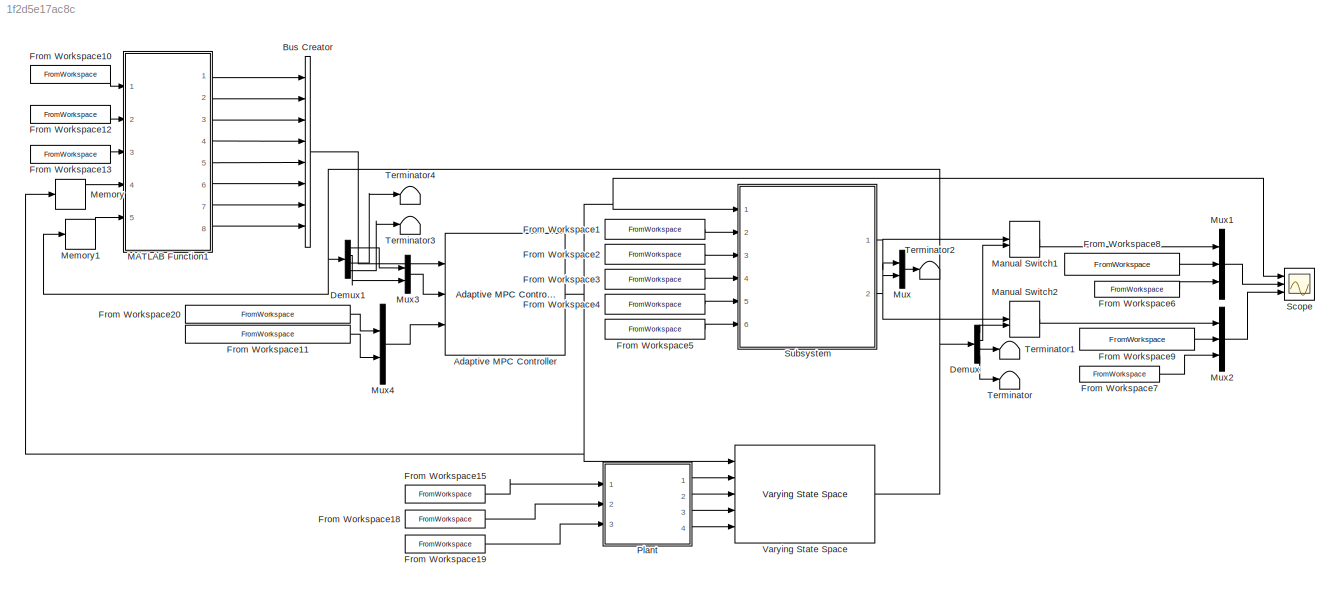
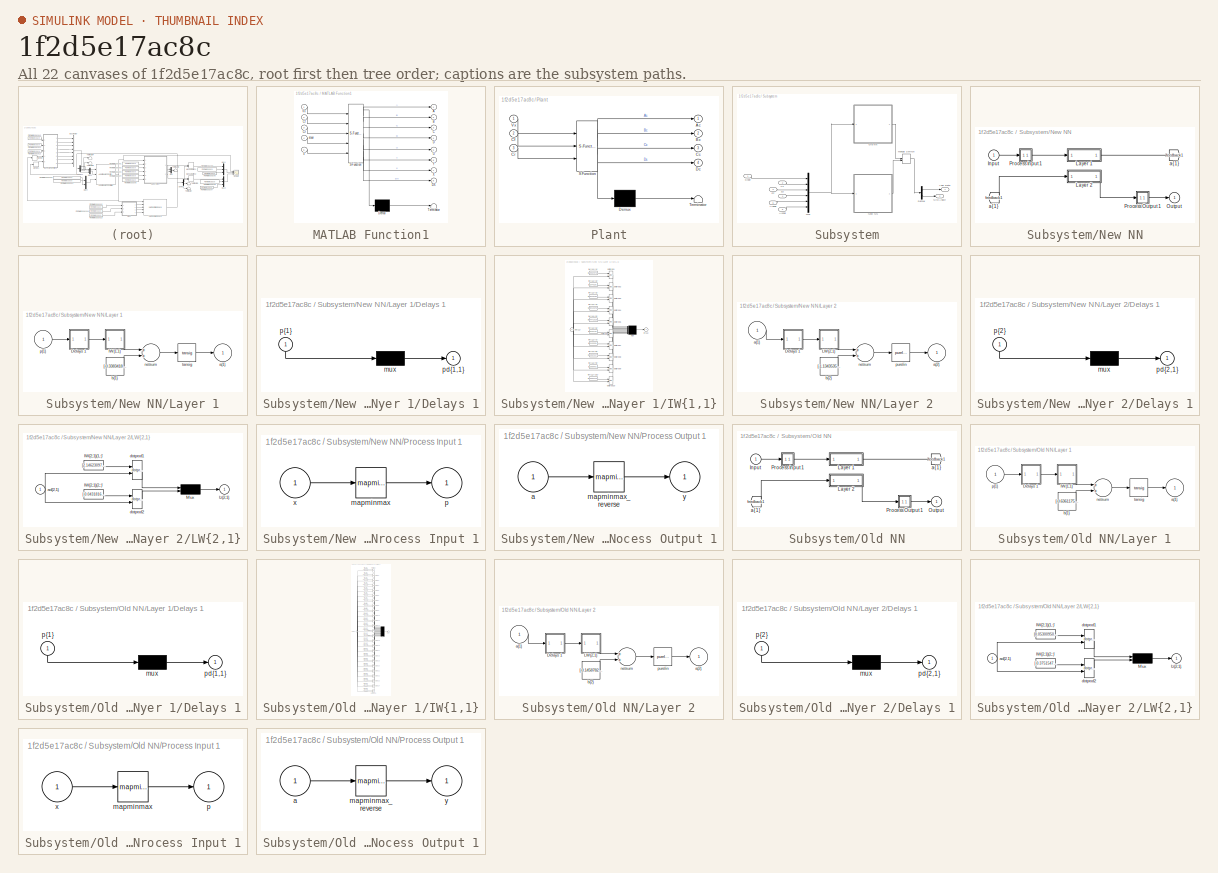
[diagram: thumbnail index - all 22 canvases of the model, root first then tree order]
MODEL slx_1f2d5e17ac8c
KIND model
CONFIG AbsTol = auto
CONFIG EnableMultiTasking = off
CONFIG FixedStep = 0.025
CONFIG MaxStep = auto
CONFIG MinStep = auto
CONFIG RelTol = 1e-3
CONFIG SampleTimeConstraint = Unconstrained
CONFIG Solver = FixedStepAuto
CONFIG SolverName = FixedStepAuto
CONFIG StartTime = 0.0
CONFIG StopTime = Time(end)
BLOCK [Reference] Adaptive MPC Controller  REF=mpclib/Adaptive MPC Controller  (lib defined in mdl_ae329e0e0455)
  Ports = [3, 1]
  SCDEnableBlockLinearizationSpecification = on
  SourceBlock = mpclib/Adaptive MPC Controller
  SourceProductBaseCode = MP
  SourceProductName = Model Predictive Control Toolbox
  SourceType = Adaptive MPC
BLOCK [BusCreator] Bus Creator
  DisplayOption = bar
  InheritFromInputs = on
  Inputs = 8
  Ports = [8, 1]
BLOCK [Demux] Demux
  DisplayOption = bar
  Ports = [1, 4]
BLOCK [Demux] Demux1
  DisplayOption = bar
  Ports = [1, 4]
BLOCK [FromWorkspace] From Workspace1
  Commented = on
  SampleTime = 0
  VariableName = [Time Vx]
  ZeroCross = on
BLOCK [FromWorkspace] From Workspace10
  SampleTime = 0
  VariableName = [Time Vx]
  ZeroCross = on
BLOCK [FromWorkspace] From Workspace11
  VariableName = [Time YawR_ref]
  ZeroCross = on
BLOCK [FromWorkspace] From Workspace12
  SampleTime = 0
  VariableName = [Time mean_Cf_fit]
  ZeroCross = on
BLOCK [FromWorkspace] From Workspace13
  SampleTime = 0
  VariableName = [Time mean_Cr_fit]
  ZeroCross = on
BLOCK [FromWorkspace] From Workspace15
  SampleTime = 0
  VariableName = [Time Vx]
  ZeroCross = on
BLOCK [FromWorkspace] From Workspace18
  SampleTime = 0
  VariableName = [Time mean_Cf_fit]
  ZeroCross = on
BLOCK [FromWorkspace] From Workspace19
  SampleTime = 0
  VariableName = [Time mean_Cr_fit]
  ZeroCross = on
BLOCK [FromWorkspace] From Workspace2
  Commented = on
  SampleTime = 0
  VariableName = [Time Fyf]
  ZeroCross = on
BLOCK [FromWorkspace] From Workspace20
  VariableName = [Time Beta_ref]
  ZeroCross = on
BLOCK [FromWorkspace] From Workspace3
  Commented = on
  SampleTime = 0
  VariableName = [Time Fyr]
  ZeroCross = on
BLOCK [FromWorkspace] From Workspace4
  Commented = on
  SampleTime = 0
  VariableName = [Time Alphaf]
  ZeroCross = on
BLOCK [FromWorkspace] From Workspace5
  Commented = on
  SampleTime = 0
  VariableName = [Time Alphar]
  ZeroCross = on
BLOCK [FromWorkspace] From Workspace6
  SampleTime = 0
  VariableName = [Time YawR]
  ZeroCross = on
BLOCK [FromWorkspace] From Workspace7
  SampleTime = 0
  VariableName = [Time Beta]
  ZeroCross = on
BLOCK [FromWorkspace] From Workspace8
  SampleTime = 0
  VariableName = [Time YawR_ref]
  ZeroCross = on
BLOCK [FromWorkspace] From Workspace9
  SampleTime = 0
  VariableName = [Time Beta_ref]
  ZeroCross = on
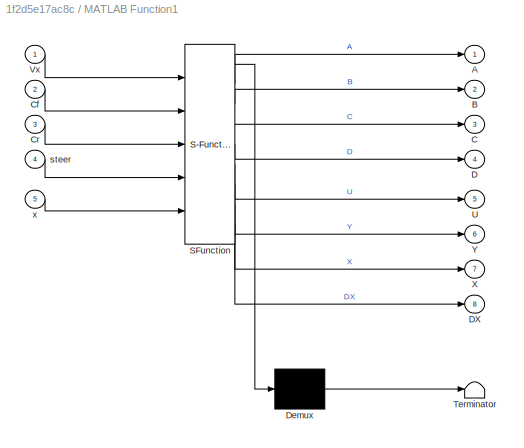
BLOCK [SubSystem] MATLAB Function1
  ErrorFcn = Stateflow.Translate.translate
  PermitHierarchicalResolution = ExplicitOnly
  Ports = [5, 8]
  RequestExecContextInheritance = off
  SFBlockType = MATLAB Function
  TreatAsAtomicUnit = on
BLOCK [Demux] MATLAB Function1/ Demux 
  Outputs = 1
  Ports = [1, 1]
BLOCK [S-Function] MATLAB Function1/ SFunction 
  EnableBusSupport = on
  FunctionName = sf_sfun
  PortCounts = [5 9]
  Ports = [5, 9]
  SFcnIsStateOwnerBlock = off
  SFunctionDeploymentMode = off
  Tag = Stateflow S-Function 2
BLOCK [Terminator] MATLAB Function1/ Terminator 
BLOCK [Outport] MATLAB Function1/A
  IconDisplay = Port number
  VectorParamsAs1DForOutWhenUnconnected = off
BLOCK [Outport] MATLAB Function1/B
  IconDisplay = Port number
  Port = 2
  VectorParamsAs1DForOutWhenUnconnected = off
BLOCK [Outport] MATLAB Function1/C
  IconDisplay = Port number
  Port = 3
  VectorParamsAs1DForOutWhenUnconnected = off
BLOCK [Inport] MATLAB Function1/Cf
  IconDisplay = Port number
  Port = 2
BLOCK [Inport] MATLAB Function1/Cr
  IconDisplay = Port number
  Port = 3
BLOCK [Outport] MATLAB Function1/D
  IconDisplay = Port number
  Port = 4
  VectorParamsAs1DForOutWhenUnconnected = off
BLOCK [Outport] MATLAB Function1/DX
  IconDisplay = Port number
  Port = 8
  VectorParamsAs1DForOutWhenUnconnected = off
BLOCK [Outport] MATLAB Function1/U
  IconDisplay = Port number
  Port = 5
  VectorParamsAs1DForOutWhenUnconnected = off
BLOCK [Inport] MATLAB Function1/Vx
  IconDisplay = Port number
BLOCK [Outport] MATLAB Function1/X
  IconDisplay = Port number
  Port = 7
  VectorParamsAs1DForOutWhenUnconnected = off
BLOCK [Outport] MATLAB Function1/Y
  IconDisplay = Port number
  Port = 6
  VectorParamsAs1DForOutWhenUnconnected = off
BLOCK [Inport] MATLAB Function1/steer
  IconDisplay = Port number
  Port = 4
BLOCK [Inport] MATLAB Function1/x
  IconDisplay = Port number
  Port = 5
BLOCK [ManualSwitch] Manual Switch1
  CurrentSetting = 0
BLOCK [ManualSwitch] Manual Switch2
  CurrentSetting = 0
BLOCK [Memory] Memory
BLOCK [Memory] Memory1
BLOCK [Mux] Mux
  DisplayOption = bar
  Inputs = 2
  Ports = [2, 1]
BLOCK [Mux] Mux1
  DisplayOption = bar
  Inputs = 3
  Ports = [3, 1]
BLOCK [Mux] Mux2
  DisplayOption = bar
  Inputs = 3
  Ports = [3, 1]
BLOCK [Mux] Mux3
  DisplayOption = bar
  Inputs = 2
  Ports = [2, 1]
BLOCK [Mux] Mux4
  DisplayOption = bar
  Inputs = 2
  Ports = [2, 1]
BLOCK [SubSystem] Plant
  ErrorFcn = Stateflow.Translate.translate
  PermitHierarchicalResolution = ExplicitOnly
  Ports = [3, 4]
  RequestExecContextInheritance = off
  SFBlockType = MATLAB Function
  TreatAsAtomicUnit = on
BLOCK [Demux] Plant/ Demux 
  Outputs = 1
  Ports = [1, 1]
BLOCK [S-Function] Plant/ SFunction 
  EnableBusSupport = on
  FunctionName = sf_sfun
  PortCounts = [3 5]
  Ports = [3, 5]
  SFcnIsStateOwnerBlock = off
  SFunctionDeploymentMode = off
  Tag = Stateflow S-Function 1
BLOCK [Terminator] Plant/ Terminator 
BLOCK [Outport] Plant/Ac
  IconDisplay = Port number
  VectorParamsAs1DForOutWhenUnconnected = off
BLOCK [Outport] Plant/Bc
  IconDisplay = Port number
  Port = 2
BLOCK [Outport] Plant/Cc
  IconDisplay = Port number
  Port = 3
BLOCK [Inport] Plant/Cf
  IconDisplay = Port number
  Port = 2
BLOCK [Inport] Plant/Cr
  IconDisplay = Port number
  Port = 3
BLOCK [Outport] Plant/Dc
  IconDisplay = Port number
  Port = 4
BLOCK [Inport] Plant/Vx
  IconDisplay = Port number
BLOCK [Scope] Scope
  Floating = off
  NumInputPorts = 3
  Ports = [3]
  ScopeSpecificationString = Simulink.scopes.TimeScopeBlockCfg('CurrentConfiguration', extmgr.ConfigurationSet(extmgr.Configuration('Core','General UI',true),extmgr.Configuration('Core','Source UI',true),extmgr.Configuration('Sources','WiredSimulink',true),extmgr.Configuration('Visuals','Time Domain',true,'SerializedDisplays',{struct('MinYLimReal','-95614.02004','MaxYLimReal','313429.44639','YLabelReal','','MinYLimMag','   0....<+2816ch>
BLOCK [SubSystem] Subsystem
  Commented = on
  Ports = [6, 2]
  RequestExecContextInheritance = off
BLOCK [Inport] Subsystem/Alphaf
  IconDisplay = Port number
  Port = 5
BLOCK [Inport] Subsystem/Alphar
  IconDisplay = Port number
  Port = 6
BLOCK [Demux] Subsystem/Demux
  DisplayOption = bar
  Outputs = 2
  Ports = [1, 2]
BLOCK [Inport] Subsystem/Fyf
  IconDisplay = Port number
  Port = 3
BLOCK [Inport] Subsystem/Fyr
  IconDisplay = Port number
  Port = 4
BLOCK [ManualSwitch] Subsystem/Manual Switch
  CurrentSetting = 0
BLOCK [Mux] Subsystem/Mux
  DisplayOption = bar
  Inputs = 6
  Ports = [6, 1]
BLOCK [SubSystem] Subsystem/New NN
  Ports = [1, 1]
  RequestExecContextInheritance = off
BLOCK [From] Subsystem/New NN/ a{1} 
  GotoTag = feedback1
BLOCK [Inport] Subsystem/New NN/Input
  IconDisplay = Port number
  PortDimensions = 6
BLOCK [SubSystem] Subsystem/New NN/Layer 1
  Ports = [1, 1]
  RequestExecContextInheritance = off
BLOCK [SubSystem] Subsystem/New NN/Layer 1/Delays 1
  Ports = [1, 1]
  RequestExecContextInheritance = off
BLOCK [Mux] Subsystem/New NN/Layer 1/Delays 1/mux
  Inputs = 1
  Ports = [1, 1]
BLOCK [Outport] Subsystem/New NN/Layer 1/Delays 1/pd{1,1}
  IconDisplay = Port number
BLOCK [Inport] Subsystem/New NN/Layer 1/Delays 1/p{1}
  IconDisplay = Port number
  PortDimensions = 6
BLOCK [SubSystem] Subsystem/New NN/Layer 1/IW{1,1}
  Ports = [1, 1]
  RequestExecContextInheritance = off
BLOCK [Constant] Subsystem/New NN/Layer 1/IW{1,1}/IW{1,1}(1,:)'
  Value = [2.1993497319179784454945547622628509998321533203125;0.379568540888895855633933251738199032843112945556640625;-0.131789280661840202402146360327606089413166046142578125;-0.06324432169368814082854868274807813577353954315185546875;3.60089216409093904047722389805130660533905029296875;-0.6187855340868100295637077579158358275890350341796875]
BLOCK [Constant] Subsystem/New NN/Layer 1/IW{1,1}/IW{1,1}(10,:)'
  Value = [2.43332215588629185987201708485372364521026611328125;-3.132439040678173025611386037780903279781341552734375;2.033708776632284109808779248851351439952850341796875;-3.08421602426274166219855032977648079395294189453125;0.02957925513544427953416260379526647739112377166748046875;-0.1131936030126976522325321639073081314563751220703125]
BLOCK [Constant] Subsystem/New NN/Layer 1/IW{1,1}/IW{1,1}(2,:)'
  Value = [-1.6344325076421437614726528408937156200408935546875;1.759078859992522669841719107353128492832183837890625;1.968106005883686560054002256947569549083709716796875;-0.69447741189528233718419869546778500080108642578125;-2.6545168405085615148664146545343101024627685546875;-3.423880588758005938387896094354800879955291748046875]
BLOCK [Constant] Subsystem/New NN/Layer 1/IW{1,1}/IW{1,1}(3,:)'
  Value = [1.232161923868251296454445764538832008838653564453125;-1.1439850537117397522024475620128214359283447265625;-0.429211557396726173241319202134036459028720855712890625;0.195054846055829955719929102997411973774433135986328125;2.208276693724478878522177183185704052448272705078125;0.5022912574136031427229909240850247442722320556640625]
BLOCK [Constant] Subsystem/New NN/Layer 1/IW{1,1}/IW{1,1}(4,:)'
  Value = [1.082126464380371633211552762077189981937408447265625;-0.37129730307754138518561148885055445134639739990234375;0.79810425840242393835666234735981561243534088134765625;-0.0984357337162460044321932173261302523314952850341796875;0.80503393013756341378694969534990377724170684814453125;-1.38724183551095858746293743024580180644989013671875]
BLOCK [Constant] Subsystem/New NN/Layer 1/IW{1,1}/IW{1,1}(5,:)'
  Value = [0.94471016274487151775929305586032569408416748046875;-1.004408437994171787721597866038791835308074951171875;0.160826847050564103458469844554201699793338775634765625;-0.181052319428635810627525870586396194994449615478515625;1.509136533573109506534137835842557251453399658203125;0.51576124977231263546428863264736719429492950439453125]
BLOCK [Constant] Subsystem/New NN/Layer 1/IW{1,1}/IW{1,1}(6,:)'
  Value = [-0.154374019902281778282571167437708936631679534912109375;0.001463591606028948576001535997193059301935136318206787109375;0.004912034318502560281682889353760401718318462371826171875;-0.006230904270530667095340238148537537199445068836212158203125;-0.2365694650119054276427021932249772362411022186279296875;-0.1170390996479229450688563929361407645046710968017578125]
BLOCK [Constant] Subsystem/New NN/Layer 1/IW{1,1}/IW{1,1}(7,:)'
  Value = [-0.61033398386761528175981084132217802107334136962890625;-0.81766935594813061616292770850122906267642974853515625;-0.491446446759277566496137978901970200240612030029296875;0.291093315685561460082197982046636752784252166748046875;-0.66489888966852628282566683992627076804637908935546875;1.0202585273489754857934030951582826673984527587890625]
BLOCK [Constant] Subsystem/New NN/Layer 1/IW{1,1}/IW{1,1}(8,:)'
  Value = [1.1235422728522943547346812920295633375644683837890625;0.2094335652842789496919095881821704097092151641845703125;0.29863779105524546064742708040284924209117889404296875;-0.330180768670108648610295176695217378437519073486328125;1.8764474979445922020460102430661208927631378173828125;0.69240312135195469789294975271332077682018280029296875]
BLOCK [Constant] Subsystem/New NN/Layer 1/IW{1,1}/IW{1,1}(9,:)'
  Value = [-1.2080663425527531362746458398760296404361724853515625;0.7805350925716776355756110206129960715770721435546875;-0.17607058969385047664246712884050793945789337158203125;0.161811371501998813027256574059720151126384735107421875;-1.8617793840638581226443193372688256204128265380859375;0.5112846911914312730829124120646156370639801025390625]
BLOCK [Mux] Subsystem/New NN/Layer 1/IW{1,1}/Mux
  Inputs = 10
  Ports = [10, 1]
BLOCK [Reference] Subsystem/New NN/Layer 1/IW{1,1}/dotprod1  REF=neural/Weight Functions/dotprod
  Ports = [2, 1]
  SourceBlock = neural/Weight Functions/dotprod
  SourceProductBaseCode = NN
  SourceProductName = Deep Learning Toolbox
  SourceType = DOTPROD
BLOCK [Reference] Subsystem/New NN/Layer 1/IW{1,1}/dotprod10  REF=neural/Weight Functions/dotprod
  Ports = [2, 1]
  SourceBlock = neural/Weight Functions/dotprod
  SourceProductBaseCode = NN
  SourceProductName = Deep Learning Toolbox
  SourceType = DOTPROD
BLOCK [Reference] Subsystem/New NN/Layer 1/IW{1,1}/dotprod2  REF=neural/Weight Functions/dotprod
  Ports = [2, 1]
  SourceBlock = neural/Weight Functions/dotprod
  SourceProductBaseCode = NN
  SourceProductName = Deep Learning Toolbox
  SourceType = DOTPROD
BLOCK [Reference] Subsystem/New NN/Layer 1/IW{1,1}/dotprod3  REF=neural/Weight Functions/dotprod
  Ports = [2, 1]
  SourceBlock = neural/Weight Functions/dotprod
  SourceProductBaseCode = NN
  SourceProductName = Deep Learning Toolbox
  SourceType = DOTPROD
BLOCK [Reference] Subsystem/New NN/Layer 1/IW{1,1}/dotprod4  REF=neural/Weight Functions/dotprod
  Ports = [2, 1]
  SourceBlock = neural/Weight Functions/dotprod
  SourceProductBaseCode = NN
  SourceProductName = Deep Learning Toolbox
  SourceType = DOTPROD
BLOCK [Reference] Subsystem/New NN/Layer 1/IW{1,1}/dotprod5  REF=neural/Weight Functions/dotprod
  Ports = [2, 1]
  SourceBlock = neural/Weight Functions/dotprod
  SourceProductBaseCode = NN
  SourceProductName = Deep Learning Toolbox
  SourceType = DOTPROD
BLOCK [Reference] Subsystem/New NN/Layer 1/IW{1,1}/dotprod6  REF=neural/Weight Functions/dotprod
  Ports = [2, 1]
  SourceBlock = neural/Weight Functions/dotprod
  SourceProductBaseCode = NN
  SourceProductName = Deep Learning Toolbox
  SourceType = DOTPROD
BLOCK [Reference] Subsystem/New NN/Layer 1/IW{1,1}/dotprod7  REF=neural/Weight Functions/dotprod
  Ports = [2, 1]
  SourceBlock = neural/Weight Functions/dotprod
  SourceProductBaseCode = NN
  SourceProductName = Deep Learning Toolbox
  SourceType = DOTPROD
BLOCK [Reference] Subsystem/New NN/Layer 1/IW{1,1}/dotprod8  REF=neural/Weight Functions/dotprod
  Ports = [2, 1]
  SourceBlock = neural/Weight Functions/dotprod
  SourceProductBaseCode = NN
  SourceProductName = Deep Learning Toolbox
  SourceType = DOTPROD
BLOCK [Reference] Subsystem/New NN/Layer 1/IW{1,1}/dotprod9  REF=neural/Weight Functions/dotprod
  Ports = [2, 1]
  SourceBlock = neural/Weight Functions/dotprod
  SourceProductBaseCode = NN
  SourceProductName = Deep Learning Toolbox
  SourceType = DOTPROD
BLOCK [Outport] Subsystem/New NN/Layer 1/IW{1,1}/iz{1,1}
  IconDisplay = Port number
BLOCK [Inport] Subsystem/New NN/Layer 1/IW{1,1}/pd{1,1}
  IconDisplay = Port number
  PortDimensions = 6
BLOCK [Outport] Subsystem/New NN/Layer 1/a{1}
  IconDisplay = Port number
  InitialOutput = [0;0;0;0;0;0;0;0;0;0]
BLOCK [Constant] Subsystem/New NN/Layer 1/b{1}
  Value = [-0.338341853589242014255233925723587162792682647705078125;-3.05254128721528505963078714557923376560211181640625;0.84508146760113433959560325092752464115619659423828125;-1.59851636609234848407368190237320959568023681640625;0.76261486728556493464026289075263775885105133056640625;-0.248418063072514794242806601687334477901458740234375;0.52128651476321141711167683752137236297130584716796875;-0.9062242...<+155ch>
BLOCK [Sum] Subsystem/New NN/Layer 1/netsum
  Inputs = 2
  Ports = [2, 1]
BLOCK [Inport] Subsystem/New NN/Layer 1/p{1}
  IconDisplay = Port number
  PortDimensions = 6
BLOCK [Reference] Subsystem/New NN/Layer 1/tansig  REF=neural/Transfer Functions/tansig
  Ports = [1, 1]
  SourceBlock = neural/Transfer Functions/tansig
  SourceProductBaseCode = NN
  SourceProductName = Deep Learning Toolbox
  SourceType = TANSIG
BLOCK [SubSystem] Subsystem/New NN/Layer 2
  Ports = [1, 1]
  RequestExecContextInheritance = off
BLOCK [SubSystem] Subsystem/New NN/Layer 2/Delays 1
  Ports = [1, 1]
  RequestExecContextInheritance = off
BLOCK [Mux] Subsystem/New NN/Layer 2/Delays 1/mux
  Inputs = 1
  Ports = [1, 1]
BLOCK [Outport] Subsystem/New NN/Layer 2/Delays 1/pd{2,1}
  IconDisplay = Port number
BLOCK [Inport] Subsystem/New NN/Layer 2/Delays 1/p{2}
  IconDisplay = Port number
  PortDimensions = 10
BLOCK [SubSystem] Subsystem/New NN/Layer 2/LW{2,1}
  Ports = [1, 1]
  RequestExecContextInheritance = off
BLOCK [Constant] Subsystem/New NN/Layer 2/LW{2,1}/IW{2,1}(1,:)'
  Value = [2.146230971869503179050298058427870273590087890625;-0.1392361092845713910204352714572451077401638031005859375;1.9479944901292167713791059213690459728240966796875;-0.18827430823241619872732144358451478183269500732421875;-4.05339651887875351832235537585802376270294189453125;0.1974937423858490193051551386815845035016536712646484375;-2.454769137452347482764025698998011648654937744140625;-2.6030723551...<+155ch>
BLOCK [Constant] Subsystem/New NN/Layer 2/LW{2,1}/IW{2,1}(2,:)'
  Value = [-0.04318166815156949944753961290189181454479694366455078125;0.00185683336830574940469473776971653933287598192691802978515625;0.00951966520429702034444829905623919330537319183349609375;-0.000693392587314719459172518423173414703342132270336151123046875;-0.006391938228917588664390603270248902845196425914764404296875;-4.16304280362685830141344922594726085662841796875;0.0014467394504769450803982611120...<+211ch>
BLOCK [Mux] Subsystem/New NN/Layer 2/LW{2,1}/Mux
  Inputs = 2
  Ports = [2, 1]
BLOCK [Inport] Subsystem/New NN/Layer 2/LW{2,1}/ad{2,1}
  IconDisplay = Port number
  PortDimensions = 10
BLOCK [Reference] Subsystem/New NN/Layer 2/LW{2,1}/dotprod1  REF=neural/Weight Functions/dotprod
  Ports = [2, 1]
  SourceBlock = neural/Weight Functions/dotprod
  SourceProductBaseCode = NN
  SourceProductName = Deep Learning Toolbox
  SourceType = DOTPROD
BLOCK [Reference] Subsystem/New NN/Layer 2/LW{2,1}/dotprod2  REF=neural/Weight Functions/dotprod
  Ports = [2, 1]
  SourceBlock = neural/Weight Functions/dotprod
  SourceProductBaseCode = NN
  SourceProductName = Deep Learning Toolbox
  SourceType = DOTPROD
BLOCK [Outport] Subsystem/New NN/Layer 2/LW{2,1}/lz{2,1}
  IconDisplay = Port number
BLOCK [Inport] Subsystem/New NN/Layer 2/a{1} 
  IconDisplay = Port number
  PortDimensions = 10
BLOCK [Outport] Subsystem/New NN/Layer 2/a{2}
  IconDisplay = Port number
  InitialOutput = [0;0]
BLOCK [Constant] Subsystem/New NN/Layer 2/b{2}
  Value = [-1.134353522080932652471574328956194221973419189453125;-0.77906731907597392972064653804409317672252655029296875]
BLOCK [Sum] Subsystem/New NN/Layer 2/netsum
  Inputs = 2
  Ports = [2, 1]
BLOCK [Reference] Subsystem/New NN/Layer 2/purelin  REF=neural/Transfer Functions/purelin
  Ports = [1, 1]
  SourceBlock = neural/Transfer Functions/purelin
  SourceProductBaseCode = NN
  SourceProductName = Deep Learning Toolbox
  SourceType = PURELIN
BLOCK [Outport] Subsystem/New NN/Output
  IconDisplay = Port number
  InitialOutput = [0;0]
BLOCK [SubSystem] Subsystem/New NN/Process Input 1
  Ports = [1, 1]
  RequestExecContextInheritance = off
BLOCK [Reference] Subsystem/New NN/Process Input 1/mapminmax  REF=neural/Processing Functions/mapminmax
  Ports = [1, 1]
  SourceBlock = neural/Processing Functions/mapminmax
  SourceProductBaseCode = NN
  SourceProductName = Deep Learning Toolbox
  SourceType = MAPMINMAX Preprocess
BLOCK [Outport] Subsystem/New NN/Process Input 1/p
  IconDisplay = Port number
  PortDimensions = 6
BLOCK [Inport] Subsystem/New NN/Process Input 1/x
  IconDisplay = Port number
  PortDimensions = 6
BLOCK [SubSystem] Subsystem/New NN/Process Output 1
  Ports = [1, 1]
  RequestExecContextInheritance = off
BLOCK [Inport] Subsystem/New NN/Process Output 1/a
  IconDisplay = Port number
  PortDimensions = 2
BLOCK [Reference] Subsystem/New NN/Process Output 1/mapminmax_reverse  REF=neural/Processing Functions/mapminmax_reverse
  Ports = [1, 1]
  SourceBlock = neural/Processing Functions/mapminmax_reverse
  SourceProductBaseCode = NN
  SourceProductName = Deep Learning Toolbox
  SourceType = MAPMINMAX Reverse Process
BLOCK [Outport] Subsystem/New NN/Process Output 1/y
  IconDisplay = Port number
  PortDimensions = 2
BLOCK [Goto] Subsystem/New NN/a{1}
  GotoTag = feedback1
BLOCK [SubSystem] Subsystem/Old NN
  Ports = [1, 1]
  RequestExecContextInheritance = off
BLOCK [From] Subsystem/Old NN/ a{1} 
  GotoTag = feedback1
BLOCK [Inport] Subsystem/Old NN/Input
  IconDisplay = Port number
  PortDimensions = 6
BLOCK [SubSystem] Subsystem/Old NN/Layer 1
  Ports = [1, 1]
  RequestExecContextInheritance = off
BLOCK [SubSystem] Subsystem/Old NN/Layer 1/Delays 1
  Ports = [1, 1]
  RequestExecContextInheritance = off
BLOCK [Mux] Subsystem/Old NN/Layer 1/Delays 1/mux
  Inputs = 1
  Ports = [1, 1]
BLOCK [Outport] Subsystem/Old NN/Layer 1/Delays 1/pd{1,1}
  IconDisplay = Port number
  VectorParamsAs1DForOutWhenUnconnected = off
BLOCK [Inport] Subsystem/Old NN/Layer 1/Delays 1/p{1}
  IconDisplay = Port number
  PortDimensions = 6
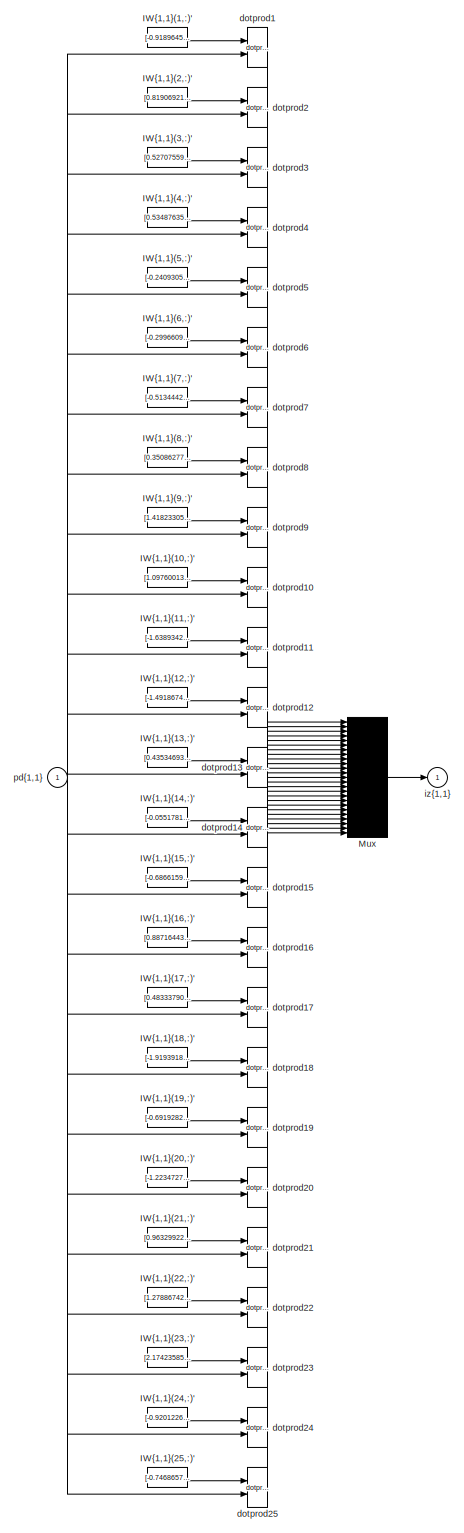
[diagram: Subsystem/Old NN/Layer 1/IW{1,1} - part 1/1, most of the canvas]
BLOCK [SubSystem] Subsystem/Old NN/Layer 1/IW{1,1}
  Ports = [1, 1]
  RequestExecContextInheritance = off
BLOCK [Constant] Subsystem/Old NN/Layer 1/IW{1,1}/IW{1,1}(1,:)'
  Value = [-0.91896454451869669100005921791307628154754638671875;2.807406064374065923772150199511088430881500244140625;-0.32650530029088009609239406927372328937053680419921875;-0.68212399974366133559300351407728157937526702880859375;0.55443567787012237868538022667053155601024627685546875;-0.328157572076140435779478821132215671241283416748046875]
BLOCK [Constant] Subsystem/Old NN/Layer 1/IW{1,1}/IW{1,1}(10,:)'
  Value = [1.097600133959441226494391230517067015171051025390625;-0.07827061444567622039425458524419809691607952117919921875;-0.38990454765808413295502532491809688508510589599609375;0.46998928551050112023546034833998419344425201416015625;0.4354289920842753236485123125021345913410186767578125;-0.59819487501920798333543416447355411946773529052734375]
BLOCK [Constant] Subsystem/Old NN/Layer 1/IW{1,1}/IW{1,1}(11,:)'
  Value = [-1.6389342699858098217902124815736897289752960205078125;-0.7309100789032456635396783894975669682025909423828125;0.0018010659112654837758771275701974445837549865245819091796875;0.83129641458116487751084378032828681170940399169921875;-0.93893409236719238553092736765393055975437164306640625;0.084419703238978460735353337440756149590015411376953125]
BLOCK [Constant] Subsystem/Old NN/Layer 1/IW{1,1}/IW{1,1}(12,:)'
  Value = [-1.4918674293447633516507266904227435588836669921875;0.52049473620865904788246325551881454885005950927734375;-0.272842583889991330270419211956323124468326568603515625;-0.5921939615822207070294780351105146110057830810546875;-1.6000734146301442972770701089757494628429412841796875;-0.7163345210483613723084772573201917111873626708984375]
BLOCK [Constant] Subsystem/Old NN/Layer 1/IW{1,1}/IW{1,1}(13,:)'
  Value = [0.4353469377680905250116438764962367713451385498046875;-0.84085297783017975969954704851261340081691741943359375;-0.3262431999570882812378158632782287895679473876953125;-0.03343748267568195930987684505453216843307018280029296875;0.7569219535729778680632762188906781375408172607421875;-0.336770011411867520312313217800692655146121978759765625]
BLOCK [Constant] Subsystem/Old NN/Layer 1/IW{1,1}/IW{1,1}(14,:)'
  Value = [-0.055178122760997337648003480126135400496423244476318359375;-1.4381626335296340268854464738979004323482513427734375;0.1875648565884424356919879528504679910838603973388671875;-0.53640519002087516664545319144963286817073822021484375;-1.0068525371299339443709186525666154921054840087890625;0.160847593541183275789308027015067636966705322265625]
BLOCK [Constant] Subsystem/Old NN/Layer 1/IW{1,1}/IW{1,1}(15,:)'
  Value = [-0.686615934023023566368237879942171275615692138671875;0.426894044409089457037254078386467881500720977783203125;-0.60810228251544184985277752275578677654266357421875;0.1522748062778661870542151746121817268431186676025390625;-2.1099858845401460172297447570599615573883056640625;0.1713882654697056195924886878856341354548931121826171875]
BLOCK [Constant] Subsystem/Old NN/Layer 1/IW{1,1}/IW{1,1}(16,:)'
  Value = [0.88716443941147471452524086998892016708850860595703125;0.40313159970102241391742836640332825481891632080078125;-0.015657524645655340744809791431180201470851898193359375;-0.478263451738349443242981351431808434426784515380859375;0.3859891211729997717583273697528056800365447998046875;0.6315189817233604063773100278922356665134429931640625]
BLOCK [Constant] Subsystem/Old NN/Layer 1/IW{1,1}/IW{1,1}(17,:)'
  Value = [0.48333790300379242399486656722729094326496124267578125;0.0251588125096972210770207567520628799684345722198486328125;-0.67153040371300332100901187004637904465198516845703125;0.46244925298389250034603037420311011373996734619140625;-0.126361383991284270678079337812960147857666015625;-0.9536652713805617853637386360787786543369293212890625]
BLOCK [Constant] Subsystem/Old NN/Layer 1/IW{1,1}/IW{1,1}(18,:)'
  Value = [-1.919391890863494598562510873307473957538604736328125;2.760761832853932506992578055360354483127593994140625;0.166517652488541612054717688806704245507717132568359375;0.554430338119628718374087839038111269474029541015625;0.9634316882260487435729601202183403074741363525390625;-1.5238850536123587087189434896572493016719818115234375]
BLOCK [Constant] Subsystem/Old NN/Layer 1/IW{1,1}/IW{1,1}(19,:)'
  Value = [-0.69192820872236715512570981445605866611003875732421875;-1.0115896887588913255484612818690948188304901123046875;0.2082050329143752265270705947841634042561054229736328125;1.4276170938064451920723740840912796556949615478515625;0.60289644057316038594507290326873771846294403076171875;0.491245567452074427539088219418772496283054351806640625]
BLOCK [Constant] Subsystem/Old NN/Layer 1/IW{1,1}/IW{1,1}(2,:)'
  Value = [0.819069212007324409796638065017759799957275390625;1.4205841344905445478019601068808697164058685302734375;-0.2087539526108411480631588119649677537381649017333984375;0.5615055630163883204630792533862404525279998779296875;0.7621159660466625407337915021344088017940521240234375;-0.25482421381122211112568720636772923171520233154296875]
BLOCK [Constant] Subsystem/Old NN/Layer 1/IW{1,1}/IW{1,1}(20,:)'
  Value = [-1.223472713315403748168819220154546201229095458984375;1.02781452349469848428498153225518763065338134765625;-0.5016143513805861875454183973488397896289825439453125;-0.76512208370276379998387028535944409668445587158203125;-0.343872743653884926917640996180125512182712554931640625;-0.8302771328935032446594277644180692732334136962890625]
BLOCK [Constant] Subsystem/Old NN/Layer 1/IW{1,1}/IW{1,1}(21,:)'
  Value = [0.96329922717340188409451684492523781955242156982421875;-0.6551169661280218381449458320275880396366119384765625;-0.50582440032005393515390778702567331492900848388671875;0.046064824593341609226815336342042428441345691680908203125;1.406097969527585700433292004163376986980438232421875;-1.30481552967731406766915824846364557743072509765625]
BLOCK [Constant] Subsystem/Old NN/Layer 1/IW{1,1}/IW{1,1}(22,:)'
  Value = [1.2788674220914140189364616162492893636226654052734375;-0.499205108866402846867771359029575251042842864990234375;0.12542267272189933091652846997021697461605072021484375;-0.54779174719712830921025670249946415424346923828125;0.97010399881503683872097099083475768566131591796875;0.613862465609015917067381451488472521305084228515625]
BLOCK [Constant] Subsystem/Old NN/Layer 1/IW{1,1}/IW{1,1}(23,:)'
  Value = [2.1742358562138814903619277174584567546844482421875;0.7779663865511003972841308495844714343547821044921875;0.11376764528600201431540739349657087586820125579833984375;-0.321381834602109339726894177147187292575836181640625;0.31338586648281763213930162237375043332576751708984375;0.8184780163425291465983946181950159370899200439453125]
BLOCK [Constant] Subsystem/Old NN/Layer 1/IW{1,1}/IW{1,1}(24,:)'
  Value = [-0.920122625825073203742476835031993687152862548828125;1.7985903786357282374552823966951109468936920166015625;-0.449335796921472019338494874318712390959262847900390625;0.37211945524182443723049118489143438637256622314453125;-0.268179811625878616876406113078701309859752655029296875;-0.99187628535014782382717157815932296216487884521484375]
BLOCK [Constant] Subsystem/Old NN/Layer 1/IW{1,1}/IW{1,1}(25,:)'
  Value = [-0.7468657722437128665404770799796096980571746826171875;0.9514243031970905928318416044930927455425262451171875;-0.19912347847005718026736076353699900209903717041015625;0.42273079982580286095839028348564170300960540771484375;-0.454298439023558542348979472080827690660953521728515625;0.1158651407635991337219394381463644094765186309814453125]
BLOCK [Constant] Subsystem/Old NN/Layer 1/IW{1,1}/IW{1,1}(3,:)'
  Value = [0.52707559518076940729969237509067170321941375732421875;-1.35807461272378393601911739096976816654205322265625;0.6803855694700444711742193248937837779521942138671875;0.5457109471856937954470367913017980754375457763671875;-0.87266721000643909800231767803779803216457366943359375;0.354606028999767397547060454598977230489253997802734375]
BLOCK [Constant] Subsystem/Old NN/Layer 1/IW{1,1}/IW{1,1}(4,:)'
  Value = [0.5348763590344882690175154493772424757480621337890625;-2.94460120006832237748994884896092116832733154296875;0.25881394439468252688385518922586925327777862548828125;-0.988869737367270573713540215976536273956298828125;-1.34291304141692702245336477062664926052093505859375;0.8873294643855762497963723944849334657192230224609375]
BLOCK [Constant] Subsystem/Old NN/Layer 1/IW{1,1}/IW{1,1}(5,:)'
  Value = [-0.2409305267371661951614214558503590524196624755859375;1.3517602448933578873635497075156308710575103759765625;0.671714233157041373800666406168602406978607177734375;0.1699364545961201400370299552378128282725811004638671875;1.4733154643789483362326109272544272243976593017578125;0.44108263254802881903060551849193871021270751953125]
BLOCK [Constant] Subsystem/Old NN/Layer 1/IW{1,1}/IW{1,1}(6,:)'
  Value = [-0.29966099248417654710152646657661534845829010009765625;2.155080979873955637771132387570105493068695068359375;-0.5456468341177356240478957261075265705585479736328125;1.29078953244448957349277407047338783740997314453125;0.66091237151677351135958815575577318668365478515625;0.7268233797996483946946000287425704300403594970703125]
BLOCK [Constant] Subsystem/Old NN/Layer 1/IW{1,1}/IW{1,1}(7,:)'
  Value = [-0.5134442442948008444858487564488314092159271240234375;-0.046290477876960854641819054222651175223290920257568359375;-0.2734432707170408871633071612450294196605682373046875;-0.2045817861686594352210732949970406480133533477783203125;0.6178838573936122902097167752799578011035919189453125;0.8082262562382600545873856390244327485561370849609375]
BLOCK [Constant] Subsystem/Old NN/Layer 1/IW{1,1}/IW{1,1}(8,:)'
  Value = [0.350862775841264851184320150423445738852024078369140625;0.68910283718495712879104075909708626568317413330078125;0.401025938922157598742757045329199172556400299072265625;0.0211565590218434108893408307494610198773443698883056640625;-1.279037208798537772480585772427730262279510498046875;1.401791982737751851573193562217056751251220703125]
BLOCK [Constant] Subsystem/Old NN/Layer 1/IW{1,1}/IW{1,1}(9,:)'
  Value = [1.418233051281720946690256823785603046417236328125;-1.182436857788876860553273218101821839809417724609375;-0.96678645577470512240125799507950432598590850830078125;-0.1518551314846387223500556729050003923475742340087890625;-0.86831624417003328009201368331559933722019195556640625;-0.64704123302700822240041134136845357716083526611328125]
BLOCK [Mux] Subsystem/Old NN/Layer 1/IW{1,1}/Mux
  Inputs = 25
  Ports = [25, 1]
BLOCK [Reference] Subsystem/Old NN/Layer 1/IW{1,1}/dotprod1  REF=neural/Weight Functions/dotprod
  Ports = [2, 1]
  SourceBlock = neural/Weight Functions/dotprod
  SourceProductBaseCode = Missing
  SourceProductName = MATLAB Runtime - Deep Learning Toolbox
  SourceType = DOTPROD
BLOCK [Reference] Subsystem/Old NN/Layer 1/IW{1,1}/dotprod10  REF=neural/Weight Functions/dotprod
  Ports = [2, 1]
  SourceBlock = neural/Weight Functions/dotprod
  SourceProductBaseCode = Missing
  SourceProductName = MATLAB Runtime - Deep Learning Toolbox
  SourceType = DOTPROD
BLOCK [Reference] Subsystem/Old NN/Layer 1/IW{1,1}/dotprod11  REF=neural/Weight Functions/dotprod
  Ports = [2, 1]
  SourceBlock = neural/Weight Functions/dotprod
  SourceProductBaseCode = Missing
  SourceProductName = MATLAB Runtime - Deep Learning Toolbox
  SourceType = DOTPROD
BLOCK [Reference] Subsystem/Old NN/Layer 1/IW{1,1}/dotprod12  REF=neural/Weight Functions/dotprod
  Ports = [2, 1]
  SourceBlock = neural/Weight Functions/dotprod
  SourceProductBaseCode = Missing
  SourceProductName = MATLAB Runtime - Deep Learning Toolbox
  SourceType = DOTPROD
BLOCK [Reference] Subsystem/Old NN/Layer 1/IW{1,1}/dotprod13  REF=neural/Weight Functions/dotprod
  Ports = [2, 1]
  SourceBlock = neural/Weight Functions/dotprod
  SourceProductBaseCode = Missing
  SourceProductName = MATLAB Runtime - Deep Learning Toolbox
  SourceType = DOTPROD
BLOCK [Reference] Subsystem/Old NN/Layer 1/IW{1,1}/dotprod14  REF=neural/Weight Functions/dotprod
  Ports = [2, 1]
  SourceBlock = neural/Weight Functions/dotprod
  SourceProductBaseCode = Missing
  SourceProductName = MATLAB Runtime - Deep Learning Toolbox
  SourceType = DOTPROD
BLOCK [Reference] Subsystem/Old NN/Layer 1/IW{1,1}/dotprod15  REF=neural/Weight Functions/dotprod
  Ports = [2, 1]
  SourceBlock = neural/Weight Functions/dotprod
  SourceProductBaseCode = Missing
  SourceProductName = MATLAB Runtime - Deep Learning Toolbox
  SourceType = DOTPROD
BLOCK [Reference] Subsystem/Old NN/Layer 1/IW{1,1}/dotprod16  REF=neural/Weight Functions/dotprod
  Ports = [2, 1]
  SourceBlock = neural/Weight Functions/dotprod
  SourceProductBaseCode = Missing
  SourceProductName = MATLAB Runtime - Deep Learning Toolbox
  SourceType = DOTPROD
BLOCK [Reference] Subsystem/Old NN/Layer 1/IW{1,1}/dotprod17  REF=neural/Weight Functions/dotprod
  Ports = [2, 1]
  SourceBlock = neural/Weight Functions/dotprod
  SourceProductBaseCode = Missing
  SourceProductName = MATLAB Runtime - Deep Learning Toolbox
  SourceType = DOTPROD
BLOCK [Reference] Subsystem/Old NN/Layer 1/IW{1,1}/dotprod18  REF=neural/Weight Functions/dotprod
  Ports = [2, 1]
  SourceBlock = neural/Weight Functions/dotprod
  SourceProductBaseCode = Missing
  SourceProductName = MATLAB Runtime - Deep Learning Toolbox
  SourceType = DOTPROD
BLOCK [Reference] Subsystem/Old NN/Layer 1/IW{1,1}/dotprod19  REF=neural/Weight Functions/dotprod
  Ports = [2, 1]
  SourceBlock = neural/Weight Functions/dotprod
  SourceProductBaseCode = Missing
  SourceProductName = MATLAB Runtime - Deep Learning Toolbox
  SourceType = DOTPROD
BLOCK [Reference] Subsystem/Old NN/Layer 1/IW{1,1}/dotprod2  REF=neural/Weight Functions/dotprod
  Ports = [2, 1]
  SourceBlock = neural/Weight Functions/dotprod
  SourceProductBaseCode = Missing
  SourceProductName = MATLAB Runtime - Deep Learning Toolbox
  SourceType = DOTPROD
BLOCK [Reference] Subsystem/Old NN/Layer 1/IW{1,1}/dotprod20  REF=neural/Weight Functions/dotprod
  Ports = [2, 1]
  SourceBlock = neural/Weight Functions/dotprod
  SourceProductBaseCode = Missing
  SourceProductName = MATLAB Runtime - Deep Learning Toolbox
  SourceType = DOTPROD
BLOCK [Reference] Subsystem/Old NN/Layer 1/IW{1,1}/dotprod21  REF=neural/Weight Functions/dotprod
  Ports = [2, 1]
  SourceBlock = neural/Weight Functions/dotprod
  SourceProductBaseCode = Missing
  SourceProductName = MATLAB Runtime - Deep Learning Toolbox
  SourceType = DOTPROD
BLOCK [Reference] Subsystem/Old NN/Layer 1/IW{1,1}/dotprod22  REF=neural/Weight Functions/dotprod
  Ports = [2, 1]
  SourceBlock = neural/Weight Functions/dotprod
  SourceProductBaseCode = Missing
  SourceProductName = MATLAB Runtime - Deep Learning Toolbox
  SourceType = DOTPROD
BLOCK [Reference] Subsystem/Old NN/Layer 1/IW{1,1}/dotprod23  REF=neural/Weight Functions/dotprod
  Ports = [2, 1]
  SourceBlock = neural/Weight Functions/dotprod
  SourceProductBaseCode = Missing
  SourceProductName = MATLAB Runtime - Deep Learning Toolbox
  SourceType = DOTPROD
BLOCK [Reference] Subsystem/Old NN/Layer 1/IW{1,1}/dotprod24  REF=neural/Weight Functions/dotprod
  Ports = [2, 1]
  SourceBlock = neural/Weight Functions/dotprod
  SourceProductBaseCode = Missing
  SourceProductName = MATLAB Runtime - Deep Learning Toolbox
  SourceType = DOTPROD
BLOCK [Reference] Subsystem/Old NN/Layer 1/IW{1,1}/dotprod25  REF=neural/Weight Functions/dotprod
  Ports = [2, 1]
  SourceBlock = neural/Weight Functions/dotprod
  SourceProductBaseCode = Missing
  SourceProductName = MATLAB Runtime - Deep Learning Toolbox
  SourceType = DOTPROD
BLOCK [Reference] Subsystem/Old NN/Layer 1/IW{1,1}/dotprod3  REF=neural/Weight Functions/dotprod
  Ports = [2, 1]
  SourceBlock = neural/Weight Functions/dotprod
  SourceProductBaseCode = Missing
  SourceProductName = MATLAB Runtime - Deep Learning Toolbox
  SourceType = DOTPROD
BLOCK [Reference] Subsystem/Old NN/Layer 1/IW{1,1}/dotprod4  REF=neural/Weight Functions/dotprod
  Ports = [2, 1]
  SourceBlock = neural/Weight Functions/dotprod
  SourceProductBaseCode = Missing
  SourceProductName = MATLAB Runtime - Deep Learning Toolbox
  SourceType = DOTPROD
BLOCK [Reference] Subsystem/Old NN/Layer 1/IW{1,1}/dotprod5  REF=neural/Weight Functions/dotprod
  Ports = [2, 1]
  SourceBlock = neural/Weight Functions/dotprod
  SourceProductBaseCode = Missing
  SourceProductName = MATLAB Runtime - Deep Learning Toolbox
  SourceType = DOTPROD
BLOCK [Reference] Subsystem/Old NN/Layer 1/IW{1,1}/dotprod6  REF=neural/Weight Functions/dotprod
  Ports = [2, 1]
  SourceBlock = neural/Weight Functions/dotprod
  SourceProductBaseCode = Missing
  SourceProductName = MATLAB Runtime - Deep Learning Toolbox
  SourceType = DOTPROD
BLOCK [Reference] Subsystem/Old NN/Layer 1/IW{1,1}/dotprod7  REF=neural/Weight Functions/dotprod
  Ports = [2, 1]
  SourceBlock = neural/Weight Functions/dotprod
  SourceProductBaseCode = Missing
  SourceProductName = MATLAB Runtime - Deep Learning Toolbox
  SourceType = DOTPROD
BLOCK [Reference] Subsystem/Old NN/Layer 1/IW{1,1}/dotprod8  REF=neural/Weight Functions/dotprod
  Ports = [2, 1]
  SourceBlock = neural/Weight Functions/dotprod
  SourceProductBaseCode = Missing
  SourceProductName = MATLAB Runtime - Deep Learning Toolbox
  SourceType = DOTPROD
BLOCK [Reference] Subsystem/Old NN/Layer 1/IW{1,1}/dotprod9  REF=neural/Weight Functions/dotprod
  Ports = [2, 1]
  SourceBlock = neural/Weight Functions/dotprod
  SourceProductBaseCode = Missing
  SourceProductName = MATLAB Runtime - Deep Learning Toolbox
  SourceType = DOTPROD
BLOCK [Outport] Subsystem/Old NN/Layer 1/IW{1,1}/iz{1,1}
  IconDisplay = Port number
  VectorParamsAs1DForOutWhenUnconnected = off
BLOCK [Inport] Subsystem/Old NN/Layer 1/IW{1,1}/pd{1,1}
  IconDisplay = Port number
  PortDimensions = 6
BLOCK [Outport] Subsystem/Old NN/Layer 1/a{1}
  IconDisplay = Port number
  InitialOutput = [0;0;0;0;0;0;0;0;0;0;0;0;0;0;0;0;0;0;0;0;0;0;0;0;0]
  VectorParamsAs1DForOutWhenUnconnected = off
BLOCK [Constant] Subsystem/Old NN/Layer 1/b{1}
  Value = [-0.63611759042286653009767860567080788314342498779296875;0.0678442132315502932637940602944581769406795501708984375;0.920857296622486831694232023437507450580596923828125;0.3400400984533717974045430310070514678955078125;1.068840554455138036615835517295636236667633056640625;-1.1840912053117917945854742356459610164165496826171875;2.1641288663140425541087097371928393840789794921875;-0.0026747980112842...<+1014ch>
BLOCK [Sum] Subsystem/Old NN/Layer 1/netsum
  Inputs = 2
  Ports = [2, 1]
BLOCK [Inport] Subsystem/Old NN/Layer 1/p{1}
  IconDisplay = Port number
  PortDimensions = 6
BLOCK [Reference] Subsystem/Old NN/Layer 1/tansig  REF=neural/Transfer Functions/tansig
  Ports = [1, 1]
  SourceBlock = neural/Transfer Functions/tansig
  SourceProductBaseCode = Missing
  SourceProductName = MATLAB Runtime - Deep Learning Toolbox
  SourceType = TANSIG
BLOCK [SubSystem] Subsystem/Old NN/Layer 2
  Ports = [1, 1]
  RequestExecContextInheritance = off
BLOCK [SubSystem] Subsystem/Old NN/Layer 2/Delays 1
  Ports = [1, 1]
  RequestExecContextInheritance = off
BLOCK [Mux] Subsystem/Old NN/Layer 2/Delays 1/mux
  Inputs = 1
  Ports = [1, 1]
BLOCK [Outport] Subsystem/Old NN/Layer 2/Delays 1/pd{2,1}
  IconDisplay = Port number
  VectorParamsAs1DForOutWhenUnconnected = off
BLOCK [Inport] Subsystem/Old NN/Layer 2/Delays 1/p{2}
  IconDisplay = Port number
  PortDimensions = 25
BLOCK [SubSystem] Subsystem/Old NN/Layer 2/LW{2,1}
  Ports = [1, 1]
  RequestExecContextInheritance = off
BLOCK [Constant] Subsystem/Old NN/Layer 2/LW{2,1}/IW{2,1}(1,:)'
  Value = [0.053009500816631381636678810309604159556329250335693359375;1.068751779914871580245971927070058882236480712890625;0.8941755927975811868435584983672015368938446044921875;0.26666444265424960047283775566029362380504608154296875;1.9854215559896750686874611346866004168987274169921875;-0.061996390584446968430309965469859889708459377288818359375;-0.7599389840378567573253576483693905174732208251953125;-1...<+995ch>
BLOCK [Constant] Subsystem/Old NN/Layer 2/LW{2,1}/IW{2,1}(2,:)'
  Value = [-0.3751547098353940068449219324975274503231048583984375;-0.91417283342699329207192704416229389607906341552734375;-0.17281979492504173645528453562292270362377166748046875;-1.107118138034655085988333667046390473842620849609375;0.1458148742536761466315198276788578368723392486572265625;0.8540653003652973751513854949735105037689208984375;0.2284368701578295690612918633632943965494632720947265625;0.1643...<+1003ch>
BLOCK [Mux] Subsystem/Old NN/Layer 2/LW{2,1}/Mux
  Inputs = 2
  Ports = [2, 1]
BLOCK [Inport] Subsystem/Old NN/Layer 2/LW{2,1}/ad{2,1}
  IconDisplay = Port number
  PortDimensions = 25
BLOCK [Reference] Subsystem/Old NN/Layer 2/LW{2,1}/dotprod1  REF=neural/Weight Functions/dotprod
  Ports = [2, 1]
  SourceBlock = neural/Weight Functions/dotprod
  SourceProductBaseCode = Missing
  SourceProductName = MATLAB Runtime - Deep Learning Toolbox
  SourceType = DOTPROD
BLOCK [Reference] Subsystem/Old NN/Layer 2/LW{2,1}/dotprod2  REF=neural/Weight Functions/dotprod
  Ports = [2, 1]
  SourceBlock = neural/Weight Functions/dotprod
  SourceProductBaseCode = Missing
  SourceProductName = MATLAB Runtime - Deep Learning Toolbox
  SourceType = DOTPROD
BLOCK [Outport] Subsystem/Old NN/Layer 2/LW{2,1}/lz{2,1}
  IconDisplay = Port number
  VectorParamsAs1DForOutWhenUnconnected = off
BLOCK [Inport] Subsystem/Old NN/Layer 2/a{1} 
  IconDisplay = Port number
  PortDimensions = 25
BLOCK [Outport] Subsystem/Old NN/Layer 2/a{2}
  IconDisplay = Port number
  InitialOutput = [0;0]
  VectorParamsAs1DForOutWhenUnconnected = off
BLOCK [Constant] Subsystem/Old NN/Layer 2/b{2}
  Value = [-0.1458782466754957596322128665633499622344970703125;0.36038774408484908207128682988695800304412841796875]
BLOCK [Sum] Subsystem/Old NN/Layer 2/netsum
  Inputs = 2
  Ports = [2, 1]
BLOCK [Reference] Subsystem/Old NN/Layer 2/purelin  REF=neural/Transfer Functions/purelin
  Ports = [1, 1]
  SourceBlock = neural/Transfer Functions/purelin
  SourceProductBaseCode = Missing
  SourceProductName = MATLAB Runtime - Deep Learning Toolbox
  SourceType = PURELIN
BLOCK [Outport] Subsystem/Old NN/Output
  IconDisplay = Port number
  InitialOutput = [0;0]
  VectorParamsAs1DForOutWhenUnconnected = off
BLOCK [SubSystem] Subsystem/Old NN/Process Input 1
  Ports = [1, 1]
  RequestExecContextInheritance = off
BLOCK [Reference] Subsystem/Old NN/Process Input 1/mapminmax  REF=neural/Processing Functions/mapminmax
  Ports = [1, 1]
  SourceBlock = neural/Processing Functions/mapminmax
  SourceProductBaseCode = Missing
  SourceProductName = MATLAB Runtime - Deep Learning Toolbox
  SourceType = MAPMINMAX Preprocess
BLOCK [Outport] Subsystem/Old NN/Process Input 1/p
  IconDisplay = Port number
  PortDimensions = 6
  VectorParamsAs1DForOutWhenUnconnected = off
BLOCK [Inport] Subsystem/Old NN/Process Input 1/x
  IconDisplay = Port number
  PortDimensions = 6
BLOCK [SubSystem] Subsystem/Old NN/Process Output 1
  Ports = [1, 1]
  RequestExecContextInheritance = off
BLOCK [Inport] Subsystem/Old NN/Process Output 1/a
  IconDisplay = Port number
  PortDimensions = 2
BLOCK [Reference] Subsystem/Old NN/Process Output 1/mapminmax_reverse  REF=neural/Processing Functions/mapminmax_reverse
  Ports = [1, 1]
  SourceBlock = neural/Processing Functions/mapminmax_reverse
  SourceProductBaseCode = Missing
  SourceProductName = MATLAB Runtime - Deep Learning Toolbox
  SourceType = MAPMINMAX Reverse Process
BLOCK [Outport] Subsystem/Old NN/Process Output 1/y
  IconDisplay = Port number
  PortDimensions = 2
  VectorParamsAs1DForOutWhenUnconnected = off
BLOCK [Goto] Subsystem/Old NN/a{1}
  GotoTag = feedback1
BLOCK [Outport] Subsystem/Slip Angle
  IconDisplay = Port number
  Port = 2
  VectorParamsAs1DForOutWhenUnconnected = off
BLOCK [Inport] Subsystem/Steer
  IconDisplay = Port number
BLOCK [Inport] Subsystem/Vx
  IconDisplay = Port number
  Port = 2
BLOCK [Outport] Subsystem/Yaw Rate
  IconDisplay = Port number
  VectorParamsAs1DForOutWhenUnconnected = off
BLOCK [Terminator] Terminator
BLOCK [Terminator] Terminator1
BLOCK [Terminator] Terminator2
BLOCK [Terminator] Terminator3
BLOCK [Terminator] Terminator4
BLOCK [Reference] Varying State Space  REF=cstblocks/Linear Parameter Varying/Varying State Space
  Ports = [5, 1]
  SourceBlock = cstblocks/Linear Parameter Varying/Varying State Space
  SourceProductBaseCode = CT
  SourceProductName = Control System Toolbox
  SourceType = Varying State Space
NET Adaptive MPC Controller:1 -> Memory:1, Scope:1, Subsystem:1, Varying State Space:1
LINE Bus Creator:1 -> Adaptive MPC Controller:1
LINE Demux1:1 -> Mux3:1
LINE Demux1:2 -> Mux3:2
LINE Demux1:3 -> Terminator4:1
LINE Demux1:4 -> Terminator3:1
LINE Demux:1 -> Manual Switch2:2
LINE Demux:2 -> Manual Switch1:2
LINE Demux:3 -> Terminator1:1
LINE Demux:4 -> Terminator:1
LINE From Workspace10:1 -> MATLAB Function1:1
LINE From Workspace11:1 -> Mux4:2
LINE From Workspace12:1 -> MATLAB Function1:2
LINE From Workspace13:1 -> MATLAB Function1:3
LINE From Workspace15:1 -> Plant:1
LINE From Workspace18:1 -> Plant:2
LINE From Workspace19:1 -> Plant:3
LINE From Workspace1:1 -> Subsystem:2
LINE From Workspace20:1 -> Mux4:1
LINE From Workspace2:1 -> Subsystem:3
LINE From Workspace3:1 -> Subsystem:4
LINE From Workspace4:1 -> Subsystem:5
LINE From Workspace5:1 -> Subsystem:6
LINE From Workspace6:1 -> Mux1:3
LINE From Workspace7:1 -> Mux2:3
LINE From Workspace8:1 -> Mux1:2
LINE From Workspace9:1 -> Mux2:2
LINE MATLAB Function1:1 -> Bus Creator:1
LINE MATLAB Function1:2 -> Bus Creator:2
LINE MATLAB Function1:3 -> Bus Creator:3
LINE MATLAB Function1:4 -> Bus Creator:4
LINE MATLAB Function1:5 -> Bus Creator:5
LINE MATLAB Function1:6 -> Bus Creator:6
LINE MATLAB Function1:7 -> Bus Creator:7
LINE MATLAB Function1:8 -> Bus Creator:8
LINE Manual Switch1:1 -> Mux1:1
LINE Manual Switch2:1 -> Mux2:1
LINE Memory1:1 -> MATLAB Function1:5
LINE Memory:1 -> MATLAB Function1:4
LINE Mux1:1 -> Scope:2
LINE Mux2:1 -> Scope:3
LINE Mux3:1 -> Adaptive MPC Controller:2
LINE Mux4:1 -> Adaptive MPC Controller:3
LINE Mux:1 -> Terminator2:1
LINE Plant:1 -> Varying State Space:2
LINE Plant:2 -> Varying State Space:3
LINE Plant:3 -> Varying State Space:4
LINE Plant:4 -> Varying State Space:5
LINE Subsystem/Alphaf:1 -> Subsystem/Mux:5
LINE Subsystem/Alphar:1 -> Subsystem/Mux:6
LINE Subsystem/Demux:1 -> Subsystem/Yaw Rate:1
LINE Subsystem/Demux:2 -> Subsystem/Slip Angle:1
LINE Subsystem/Fyf:1 -> Subsystem/Mux:3
LINE Subsystem/Fyr:1 -> Subsystem/Mux:4
LINE Subsystem/Manual Switch:1 -> Subsystem/Demux:1
NET Subsystem/Mux:1 -> Subsystem/New NN:1, Subsystem/Old NN:1
LINE Subsystem/New NN/ a{1} :1 -> Subsystem/New NN/Layer 2:1
LINE Subsystem/New NN/Input:1 -> Subsystem/New NN/Process Input 1:1
LINE Subsystem/New NN/Layer 1/Delays 1/mux:1 -> Subsystem/New NN/Layer 1/Delays 1/pd{1,1}:1
LINE Subsystem/New NN/Layer 1/Delays 1/p{1}:1 -> Subsystem/New NN/Layer 1/Delays 1/mux:1
LINE Subsystem/New NN/Layer 1/Delays 1:1 -> Subsystem/New NN/Layer 1/IW{1,1}:1
LINE Subsystem/New NN/Layer 1/IW{1,1}/IW{1,1}(1,:)':1 -> Subsystem/New NN/Layer 1/IW{1,1}/dotprod1:1
LINE Subsystem/New NN/Layer 1/IW{1,1}/IW{1,1}(10,:)':1 -> Subsystem/New NN/Layer 1/IW{1,1}/dotprod10:1
LINE Subsystem/New NN/Layer 1/IW{1,1}/IW{1,1}(2,:)':1 -> Subsystem/New NN/Layer 1/IW{1,1}/dotprod2:1
LINE Subsystem/New NN/Layer 1/IW{1,1}/IW{1,1}(3,:)':1 -> Subsystem/New NN/Layer 1/IW{1,1}/dotprod3:1
LINE Subsystem/New NN/Layer 1/IW{1,1}/IW{1,1}(4,:)':1 -> Subsystem/New NN/Layer 1/IW{1,1}/dotprod4:1
LINE Subsystem/New NN/Layer 1/IW{1,1}/IW{1,1}(5,:)':1 -> Subsystem/New NN/Layer 1/IW{1,1}/dotprod5:1
LINE Subsystem/New NN/Layer 1/IW{1,1}/IW{1,1}(6,:)':1 -> Subsystem/New NN/Layer 1/IW{1,1}/dotprod6:1
LINE Subsystem/New NN/Layer 1/IW{1,1}/IW{1,1}(7,:)':1 -> Subsystem/New NN/Layer 1/IW{1,1}/dotprod7:1
LINE Subsystem/New NN/Layer 1/IW{1,1}/IW{1,1}(8,:)':1 -> Subsystem/New NN/Layer 1/IW{1,1}/dotprod8:1
LINE Subsystem/New NN/Layer 1/IW{1,1}/IW{1,1}(9,:)':1 -> Subsystem/New NN/Layer 1/IW{1,1}/dotprod9:1
LINE Subsystem/New NN/Layer 1/IW{1,1}/Mux:1 -> Subsystem/New NN/Layer 1/IW{1,1}/iz{1,1}:1
LINE Subsystem/New NN/Layer 1/IW{1,1}/dotprod10:1 -> Subsystem/New NN/Layer 1/IW{1,1}/Mux:10
LINE Subsystem/New NN/Layer 1/IW{1,1}/dotprod1:1 -> Subsystem/New NN/Layer 1/IW{1,1}/Mux:1
LINE Subsystem/New NN/Layer 1/IW{1,1}/dotprod2:1 -> Subsystem/New NN/Layer 1/IW{1,1}/Mux:2
LINE Subsystem/New NN/Layer 1/IW{1,1}/dotprod3:1 -> Subsystem/New NN/Layer 1/IW{1,1}/Mux:3
LINE Subsystem/New NN/Layer 1/IW{1,1}/dotprod4:1 -> Subsystem/New NN/Layer 1/IW{1,1}/Mux:4
LINE Subsystem/New NN/Layer 1/IW{1,1}/dotprod5:1 -> Subsystem/New NN/Layer 1/IW{1,1}/Mux:5
LINE Subsystem/New NN/Layer 1/IW{1,1}/dotprod6:1 -> Subsystem/New NN/Layer 1/IW{1,1}/Mux:6
LINE Subsystem/New NN/Layer 1/IW{1,1}/dotprod7:1 -> Subsystem/New NN/Layer 1/IW{1,1}/Mux:7
LINE Subsystem/New NN/Layer 1/IW{1,1}/dotprod8:1 -> Subsystem/New NN/Layer 1/IW{1,1}/Mux:8
LINE Subsystem/New NN/Layer 1/IW{1,1}/dotprod9:1 -> Subsystem/New NN/Layer 1/IW{1,1}/Mux:9
NET Subsystem/New NN/Layer 1/IW{1,1}/pd{1,1}:1 -> Subsystem/New NN/Layer 1/IW{1,1}/dotprod10:2, Subsystem/New NN/Layer 1/IW{1,1}/dotprod1:2, Subsystem/New NN/Layer 1/IW{1,1}/dotprod2:2, Subsystem/New NN/Layer 1/IW{1,1}/dotprod3:2, Subsystem/New NN/Layer 1/IW{1,1}/dotprod4:2, Subsystem/New NN/Layer 1/IW{1,1}/dotprod5:2, Subsystem/New NN/Layer 1/IW{1,1}/dotprod6:2, Subsystem/New NN/Layer 1/IW{1,1}/dotprod7:2, Subsystem/New NN/Layer 1/IW{1,1}/dotprod8:2, Subsystem/New NN/Layer 1/IW{1,1}/dotprod9:2
LINE Subsystem/New NN/Layer 1/IW{1,1}:1 -> Subsystem/New NN/Layer 1/netsum:1
LINE Subsystem/New NN/Layer 1/b{1}:1 -> Subsystem/New NN/Layer 1/netsum:2
LINE Subsystem/New NN/Layer 1/netsum:1 -> Subsystem/New NN/Layer 1/tansig:1
LINE Subsystem/New NN/Layer 1/p{1}:1 -> Subsystem/New NN/Layer 1/Delays 1:1
LINE Subsystem/New NN/Layer 1/tansig:1 -> Subsystem/New NN/Layer 1/a{1}:1
LINE Subsystem/New NN/Layer 1:1 -> Subsystem/New NN/a{1}:1
LINE Subsystem/New NN/Layer 2/Delays 1/mux:1 -> Subsystem/New NN/Layer 2/Delays 1/pd{2,1}:1
LINE Subsystem/New NN/Layer 2/Delays 1/p{2}:1 -> Subsystem/New NN/Layer 2/Delays 1/mux:1
LINE Subsystem/New NN/Layer 2/Delays 1:1 -> Subsystem/New NN/Layer 2/LW{2,1}:1
LINE Subsystem/New NN/Layer 2/LW{2,1}/IW{2,1}(1,:)':1 -> Subsystem/New NN/Layer 2/LW{2,1}/dotprod1:1
LINE Subsystem/New NN/Layer 2/LW{2,1}/IW{2,1}(2,:)':1 -> Subsystem/New NN/Layer 2/LW{2,1}/dotprod2:1
LINE Subsystem/New NN/Layer 2/LW{2,1}/Mux:1 -> Subsystem/New NN/Layer 2/LW{2,1}/lz{2,1}:1
NET Subsystem/New NN/Layer 2/LW{2,1}/ad{2,1}:1 -> Subsystem/New NN/Layer 2/LW{2,1}/dotprod1:2, Subsystem/New NN/Layer 2/LW{2,1}/dotprod2:2
LINE Subsystem/New NN/Layer 2/LW{2,1}/dotprod1:1 -> Subsystem/New NN/Layer 2/LW{2,1}/Mux:1
LINE Subsystem/New NN/Layer 2/LW{2,1}/dotprod2:1 -> Subsystem/New NN/Layer 2/LW{2,1}/Mux:2
LINE Subsystem/New NN/Layer 2/LW{2,1}:1 -> Subsystem/New NN/Layer 2/netsum:1
LINE Subsystem/New NN/Layer 2/a{1} :1 -> Subsystem/New NN/Layer 2/Delays 1:1
LINE Subsystem/New NN/Layer 2/b{2}:1 -> Subsystem/New NN/Layer 2/netsum:2
LINE Subsystem/New NN/Layer 2/netsum:1 -> Subsystem/New NN/Layer 2/purelin:1
LINE Subsystem/New NN/Layer 2/purelin:1 -> Subsystem/New NN/Layer 2/a{2}:1
LINE Subsystem/New NN/Layer 2:1 -> Subsystem/New NN/Process Output 1:1
LINE Subsystem/New NN/Process Input 1/mapminmax:1 -> Subsystem/New NN/Process Input 1/p:1
LINE Subsystem/New NN/Process Input 1/x:1 -> Subsystem/New NN/Process Input 1/mapminmax:1
LINE Subsystem/New NN/Process Input 1:1 -> Subsystem/New NN/Layer 1:1
LINE Subsystem/New NN/Process Output 1/a:1 -> Subsystem/New NN/Process Output 1/mapminmax_reverse:1
LINE Subsystem/New NN/Process Output 1/mapminmax_reverse:1 -> Subsystem/New NN/Process Output 1/y:1
LINE Subsystem/New NN/Process Output 1:1 -> Subsystem/New NN/Output:1
LINE Subsystem/New NN:1 -> Subsystem/Manual Switch:2
LINE Subsystem/Old NN/ a{1} :1 -> Subsystem/Old NN/Layer 2:1
LINE Subsystem/Old NN/Input:1 -> Subsystem/Old NN/Process Input 1:1
LINE Subsystem/Old NN/Layer 1/Delays 1/mux:1 -> Subsystem/Old NN/Layer 1/Delays 1/pd{1,1}:1
LINE Subsystem/Old NN/Layer 1/Delays 1/p{1}:1 -> Subsystem/Old NN/Layer 1/Delays 1/mux:1
LINE Subsystem/Old NN/Layer 1/Delays 1:1 -> Subsystem/Old NN/Layer 1/IW{1,1}:1
LINE Subsystem/Old NN/Layer 1/IW{1,1}/IW{1,1}(1,:)':1 -> Subsystem/Old NN/Layer 1/IW{1,1}/dotprod1:1
LINE Subsystem/Old NN/Layer 1/IW{1,1}/IW{1,1}(10,:)':1 -> Subsystem/Old NN/Layer 1/IW{1,1}/dotprod10:1
LINE Subsystem/Old NN/Layer 1/IW{1,1}/IW{1,1}(11,:)':1 -> Subsystem/Old NN/Layer 1/IW{1,1}/dotprod11:1
LINE Subsystem/Old NN/Layer 1/IW{1,1}/IW{1,1}(12,:)':1 -> Subsystem/Old NN/Layer 1/IW{1,1}/dotprod12:1
LINE Subsystem/Old NN/Layer 1/IW{1,1}/IW{1,1}(13,:)':1 -> Subsystem/Old NN/Layer 1/IW{1,1}/dotprod13:1
LINE Subsystem/Old NN/Layer 1/IW{1,1}/IW{1,1}(14,:)':1 -> Subsystem/Old NN/Layer 1/IW{1,1}/dotprod14:1
LINE Subsystem/Old NN/Layer 1/IW{1,1}/IW{1,1}(15,:)':1 -> Subsystem/Old NN/Layer 1/IW{1,1}/dotprod15:1
LINE Subsystem/Old NN/Layer 1/IW{1,1}/IW{1,1}(16,:)':1 -> Subsystem/Old NN/Layer 1/IW{1,1}/dotprod16:1
LINE Subsystem/Old NN/Layer 1/IW{1,1}/IW{1,1}(17,:)':1 -> Subsystem/Old NN/Layer 1/IW{1,1}/dotprod17:1
LINE Subsystem/Old NN/Layer 1/IW{1,1}/IW{1,1}(18,:)':1 -> Subsystem/Old NN/Layer 1/IW{1,1}/dotprod18:1
LINE Subsystem/Old NN/Layer 1/IW{1,1}/IW{1,1}(19,:)':1 -> Subsystem/Old NN/Layer 1/IW{1,1}/dotprod19:1
LINE Subsystem/Old NN/Layer 1/IW{1,1}/IW{1,1}(2,:)':1 -> Subsystem/Old NN/Layer 1/IW{1,1}/dotprod2:1
LINE Subsystem/Old NN/Layer 1/IW{1,1}/IW{1,1}(20,:)':1 -> Subsystem/Old NN/Layer 1/IW{1,1}/dotprod20:1
LINE Subsystem/Old NN/Layer 1/IW{1,1}/IW{1,1}(21,:)':1 -> Subsystem/Old NN/Layer 1/IW{1,1}/dotprod21:1
LINE Subsystem/Old NN/Layer 1/IW{1,1}/IW{1,1}(22,:)':1 -> Subsystem/Old NN/Layer 1/IW{1,1}/dotprod22:1
LINE Subsystem/Old NN/Layer 1/IW{1,1}/IW{1,1}(23,:)':1 -> Subsystem/Old NN/Layer 1/IW{1,1}/dotprod23:1
LINE Subsystem/Old NN/Layer 1/IW{1,1}/IW{1,1}(24,:)':1 -> Subsystem/Old NN/Layer 1/IW{1,1}/dotprod24:1
LINE Subsystem/Old NN/Layer 1/IW{1,1}/IW{1,1}(25,:)':1 -> Subsystem/Old NN/Layer 1/IW{1,1}/dotprod25:1
LINE Subsystem/Old NN/Layer 1/IW{1,1}/IW{1,1}(3,:)':1 -> Subsystem/Old NN/Layer 1/IW{1,1}/dotprod3:1
LINE Subsystem/Old NN/Layer 1/IW{1,1}/IW{1,1}(4,:)':1 -> Subsystem/Old NN/Layer 1/IW{1,1}/dotprod4:1
LINE Subsystem/Old NN/Layer 1/IW{1,1}/IW{1,1}(5,:)':1 -> Subsystem/Old NN/Layer 1/IW{1,1}/dotprod5:1
LINE Subsystem/Old NN/Layer 1/IW{1,1}/IW{1,1}(6,:)':1 -> Subsystem/Old NN/Layer 1/IW{1,1}/dotprod6:1
LINE Subsystem/Old NN/Layer 1/IW{1,1}/IW{1,1}(7,:)':1 -> Subsystem/Old NN/Layer 1/IW{1,1}/dotprod7:1
LINE Subsystem/Old NN/Layer 1/IW{1,1}/IW{1,1}(8,:)':1 -> Subsystem/Old NN/Layer 1/IW{1,1}/dotprod8:1
LINE Subsystem/Old NN/Layer 1/IW{1,1}/IW{1,1}(9,:)':1 -> Subsystem/Old NN/Layer 1/IW{1,1}/dotprod9:1
LINE Subsystem/Old NN/Layer 1/IW{1,1}/Mux:1 -> Subsystem/Old NN/Layer 1/IW{1,1}/iz{1,1}:1
LINE Subsystem/Old NN/Layer 1/IW{1,1}/dotprod10:1 -> Subsystem/Old NN/Layer 1/IW{1,1}/Mux:10
LINE Subsystem/Old NN/Layer 1/IW{1,1}/dotprod11:1 -> Subsystem/Old NN/Layer 1/IW{1,1}/Mux:11
LINE Subsystem/Old NN/Layer 1/IW{1,1}/dotprod12:1 -> Subsystem/Old NN/Layer 1/IW{1,1}/Mux:12
LINE Subsystem/Old NN/Layer 1/IW{1,1}/dotprod13:1 -> Subsystem/Old NN/Layer 1/IW{1,1}/Mux:13
LINE Subsystem/Old NN/Layer 1/IW{1,1}/dotprod14:1 -> Subsystem/Old NN/Layer 1/IW{1,1}/Mux:14
LINE Subsystem/Old NN/Layer 1/IW{1,1}/dotprod15:1 -> Subsystem/Old NN/Layer 1/IW{1,1}/Mux:15
LINE Subsystem/Old NN/Layer 1/IW{1,1}/dotprod16:1 -> Subsystem/Old NN/Layer 1/IW{1,1}/Mux:16
LINE Subsystem/Old NN/Layer 1/IW{1,1}/dotprod17:1 -> Subsystem/Old NN/Layer 1/IW{1,1}/Mux:17
LINE Subsystem/Old NN/Layer 1/IW{1,1}/dotprod18:1 -> Subsystem/Old NN/Layer 1/IW{1,1}/Mux:18
LINE Subsystem/Old NN/Layer 1/IW{1,1}/dotprod19:1 -> Subsystem/Old NN/Layer 1/IW{1,1}/Mux:19
LINE Subsystem/Old NN/Layer 1/IW{1,1}/dotprod1:1 -> Subsystem/Old NN/Layer 1/IW{1,1}/Mux:1
LINE Subsystem/Old NN/Layer 1/IW{1,1}/dotprod20:1 -> Subsystem/Old NN/Layer 1/IW{1,1}/Mux:20
LINE Subsystem/Old NN/Layer 1/IW{1,1}/dotprod21:1 -> Subsystem/Old NN/Layer 1/IW{1,1}/Mux:21
LINE Subsystem/Old NN/Layer 1/IW{1,1}/dotprod22:1 -> Subsystem/Old NN/Layer 1/IW{1,1}/Mux:22
LINE Subsystem/Old NN/Layer 1/IW{1,1}/dotprod23:1 -> Subsystem/Old NN/Layer 1/IW{1,1}/Mux:23
LINE Subsystem/Old NN/Layer 1/IW{1,1}/dotprod24:1 -> Subsystem/Old NN/Layer 1/IW{1,1}/Mux:24
LINE Subsystem/Old NN/Layer 1/IW{1,1}/dotprod25:1 -> Subsystem/Old NN/Layer 1/IW{1,1}/Mux:25
LINE Subsystem/Old NN/Layer 1/IW{1,1}/dotprod2:1 -> Subsystem/Old NN/Layer 1/IW{1,1}/Mux:2
LINE Subsystem/Old NN/Layer 1/IW{1,1}/dotprod3:1 -> Subsystem/Old NN/Layer 1/IW{1,1}/Mux:3
LINE Subsystem/Old NN/Layer 1/IW{1,1}/dotprod4:1 -> Subsystem/Old NN/Layer 1/IW{1,1}/Mux:4
LINE Subsystem/Old NN/Layer 1/IW{1,1}/dotprod5:1 -> Subsystem/Old NN/Layer 1/IW{1,1}/Mux:5
LINE Subsystem/Old NN/Layer 1/IW{1,1}/dotprod6:1 -> Subsystem/Old NN/Layer 1/IW{1,1}/Mux:6
LINE Subsystem/Old NN/Layer 1/IW{1,1}/dotprod7:1 -> Subsystem/Old NN/Layer 1/IW{1,1}/Mux:7
LINE Subsystem/Old NN/Layer 1/IW{1,1}/dotprod8:1 -> Subsystem/Old NN/Layer 1/IW{1,1}/Mux:8
LINE Subsystem/Old NN/Layer 1/IW{1,1}/dotprod9:1 -> Subsystem/Old NN/Layer 1/IW{1,1}/Mux:9
NET Subsystem/Old NN/Layer 1/IW{1,1}/pd{1,1}:1 -> Subsystem/Old NN/Layer 1/IW{1,1}/dotprod10:2, Subsystem/Old NN/Layer 1/IW{1,1}/dotprod11:2, Subsystem/Old NN/Layer 1/IW{1,1}/dotprod12:2, Subsystem/Old NN/Layer 1/IW{1,1}/dotprod13:2, Subsystem/Old NN/Layer 1/IW{1,1}/dotprod14:2, Subsystem/Old NN/Layer 1/IW{1,1}/dotprod15:2, Subsystem/Old NN/Layer 1/IW{1,1}/dotprod16:2, Subsystem/Old NN/Layer 1/IW{1,1}/dotprod17:2, Subsystem/Old NN/Layer 1/IW{1,1}/dotprod18:2, Subsystem/Old NN/Layer 1/IW{1,1}/dotprod19:2, Subsystem/Old NN/Layer 1/IW{1,1}/dotprod1:2, Subsystem/Old NN/Layer 1/IW{1,1}/dotprod20:2, Subsystem/Old NN/Layer 1/IW{1,1}/dotprod21:2, Subsystem/Old NN/Layer 1/IW{1,1}/dotprod22:2, Subsystem/Old NN/Layer 1/IW{1,1}/dotprod23:2, Subsystem/Old NN/Layer 1/IW{1,1}/dotprod24:2, Subsystem/Old NN/Layer 1/IW{1,1}/dotprod25:2, Subsystem/Old NN/Layer 1/IW{1,1}/dotprod2:2, Subsystem/Old NN/Layer 1/IW{1,1}/dotprod3:2, Subsystem/Old NN/Layer 1/IW{1,1}/dotprod4:2, Subsystem/Old NN/Layer 1/IW{1,1}/dotprod5:2, Subsystem/Old NN/Layer 1/IW{1,1}/dotprod6:2, Subsystem/Old NN/Layer 1/IW{1,1}/dotprod7:2, Subsystem/Old NN/Layer 1/IW{1,1}/dotprod8:2, Subsystem/Old NN/Layer 1/IW{1,1}/dotprod9:2
LINE Subsystem/Old NN/Layer 1/IW{1,1}:1 -> Subsystem/Old NN/Layer 1/netsum:1
LINE Subsystem/Old NN/Layer 1/b{1}:1 -> Subsystem/Old NN/Layer 1/netsum:2
LINE Subsystem/Old NN/Layer 1/netsum:1 -> Subsystem/Old NN/Layer 1/tansig:1
LINE Subsystem/Old NN/Layer 1/p{1}:1 -> Subsystem/Old NN/Layer 1/Delays 1:1
LINE Subsystem/Old NN/Layer 1/tansig:1 -> Subsystem/Old NN/Layer 1/a{1}:1
LINE Subsystem/Old NN/Layer 1:1 -> Subsystem/Old NN/a{1}:1
LINE Subsystem/Old NN/Layer 2/Delays 1/mux:1 -> Subsystem/Old NN/Layer 2/Delays 1/pd{2,1}:1
LINE Subsystem/Old NN/Layer 2/Delays 1/p{2}:1 -> Subsystem/Old NN/Layer 2/Delays 1/mux:1
LINE Subsystem/Old NN/Layer 2/Delays 1:1 -> Subsystem/Old NN/Layer 2/LW{2,1}:1
LINE Subsystem/Old NN/Layer 2/LW{2,1}/IW{2,1}(1,:)':1 -> Subsystem/Old NN/Layer 2/LW{2,1}/dotprod1:1
LINE Subsystem/Old NN/Layer 2/LW{2,1}/IW{2,1}(2,:)':1 -> Subsystem/Old NN/Layer 2/LW{2,1}/dotprod2:1
LINE Subsystem/Old NN/Layer 2/LW{2,1}/Mux:1 -> Subsystem/Old NN/Layer 2/LW{2,1}/lz{2,1}:1
NET Subsystem/Old NN/Layer 2/LW{2,1}/ad{2,1}:1 -> Subsystem/Old NN/Layer 2/LW{2,1}/dotprod1:2, Subsystem/Old NN/Layer 2/LW{2,1}/dotprod2:2
LINE Subsystem/Old NN/Layer 2/LW{2,1}/dotprod1:1 -> Subsystem/Old NN/Layer 2/LW{2,1}/Mux:1
LINE Subsystem/Old NN/Layer 2/LW{2,1}/dotprod2:1 -> Subsystem/Old NN/Layer 2/LW{2,1}/Mux:2
LINE Subsystem/Old NN/Layer 2/LW{2,1}:1 -> Subsystem/Old NN/Layer 2/netsum:1
LINE Subsystem/Old NN/Layer 2/a{1} :1 -> Subsystem/Old NN/Layer 2/Delays 1:1
LINE Subsystem/Old NN/Layer 2/b{2}:1 -> Subsystem/Old NN/Layer 2/netsum:2
LINE Subsystem/Old NN/Layer 2/netsum:1 -> Subsystem/Old NN/Layer 2/purelin:1
LINE Subsystem/Old NN/Layer 2/purelin:1 -> Subsystem/Old NN/Layer 2/a{2}:1
LINE Subsystem/Old NN/Layer 2:1 -> Subsystem/Old NN/Process Output 1:1
LINE Subsystem/Old NN/Process Input 1/mapminmax:1 -> Subsystem/Old NN/Process Input 1/p:1
LINE Subsystem/Old NN/Process Input 1/x:1 -> Subsystem/Old NN/Process Input 1/mapminmax:1
LINE Subsystem/Old NN/Process Input 1:1 -> Subsystem/Old NN/Layer 1:1
LINE Subsystem/Old NN/Process Output 1/a:1 -> Subsystem/Old NN/Process Output 1/mapminmax_reverse:1
LINE Subsystem/Old NN/Process Output 1/mapminmax_reverse:1 -> Subsystem/Old NN/Process Output 1/y:1
LINE Subsystem/Old NN/Process Output 1:1 -> Subsystem/Old NN/Output:1
LINE Subsystem/Old NN:1 -> Subsystem/Manual Switch:1
LINE Subsystem/Steer:1 -> Subsystem/Mux:1
LINE Subsystem/Vx:1 -> Subsystem/Mux:2
NET Subsystem:1 -> Manual Switch1:1, Mux:1
NET Subsystem:2 -> Manual Switch2:1, Mux:2
NET Varying State Space:1 -> Demux1:1, Demux:1, Memory1:1
note: NET lines group one-source signal fan-out (src -> all destinations, sorted); 1:1 wires keep LINE
CHART Plant states=1 transitions=1
  STATE_LABEL 'eML_blk_kernel()'
  STATE_LABEL 'SCRIPT:\nfunction [Ac, Bc, Cc, Dc]  = fcn(Vx,Cf,Cr)\n\n% Model parameters\nm = 1650;\nIz = 3234;\nlf = 1.4;\nlr = 1.65;\nl = lf + lr;\n% Continuous-time model\na11 = (-Cf-Cr)/(m*Vx);\na12 = -1 + ((Cr*lr - Cf*lf)/(m*Vx^2));\na13 = 0;\na14 = 0;\n\na21 = (Cr*lr - Cf*lf)/Iz;\na22 = (-Cf*lf^2-Cr*lr^2)/(Iz*Vx);\na23 = 0;\na24 = 0;\n\na31 = (Cf.^2 + Cf*Cr)/(m*Vx);\na32 = (1 - (Cr*lr - Cf*lf)/(m*Vx*2))*Cf;\na33 = -lf^2*Cf/(Vx*...<+476ch>'
CHART MATLAB Function1 states=1 transitions=1
  STATE_LABEL 'eML_blk_kernel()'
  STATE_LABEL 'SCRIPT:\nfunction [A,B,C,D,U,Y,X,DX] = fcn(Vx,Cf,Cr,steer,x)\n% Sample time\nTs = 0.025;\n\n% Model parameters\nm = 1650;\nIz = 3234;\nlf = 1.4;\nlr = 1.65;\nl = lf + lr;\n% Continuous-time model\naa11 = -Cf/(m*Vx);\naa12 = -(1 + (1/(m*Vx))+(lf*Cf/(m*Vx^2)));\naa13 = 0;\naa14 = 1/(m*Vx);\n\naa21 = Cf*lf/Iz;\naa22 = -Cf*lf^2/(Iz*Vx);\naa23 = 0;\naa24 = -lr/Iz;\n\naa31 = (Cf.^2 + Cf*Cr)/(m*Vx);\naa32 = (1 - (Cr*lr - Cf*lf...<+946ch>'
